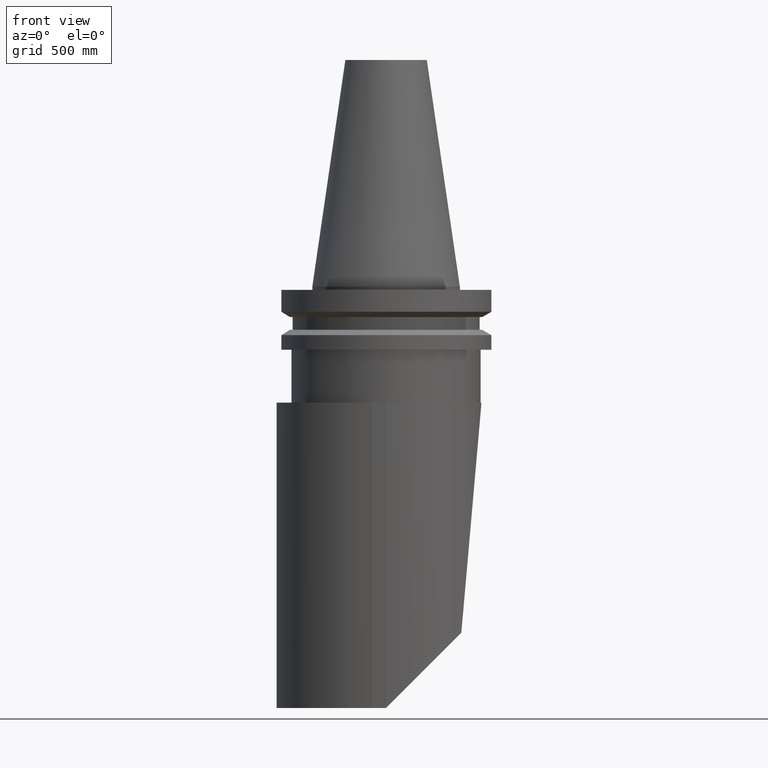
[diagram: clean part render]
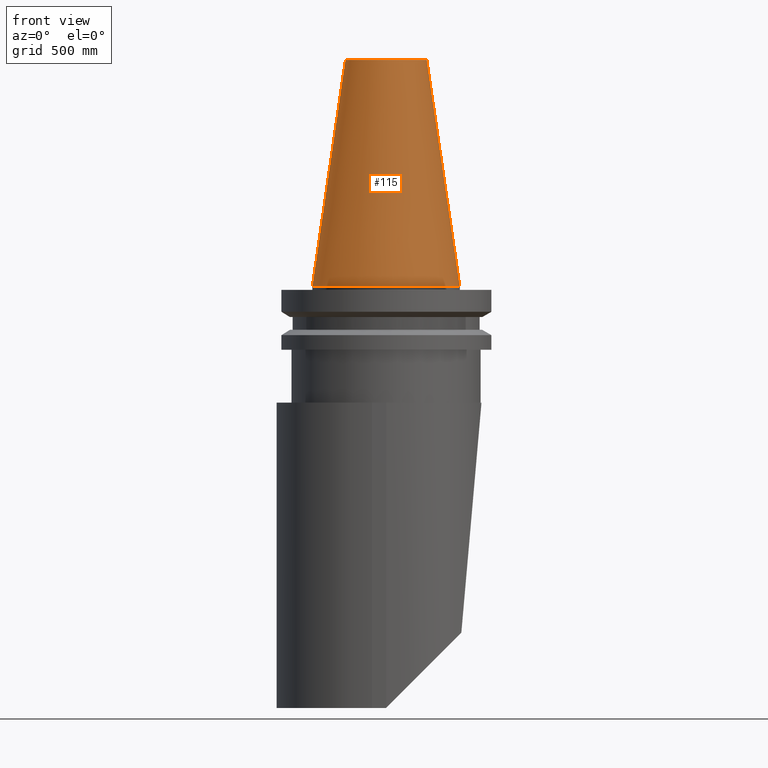
[diagram: same view with one face highlighted and labeled with its STEP entity id]
A machine part, front view. The second image highlights one B-rep face of the part: STEP entity #115.
In plain terms, the highlighted conical surface has half-angle 8.297 deg.
Its self-contained STEP definition (entity closure, byte-faithful):
#115=ADVANCED_FACE('Unnamed[1]',(#333,#334),#335,.T.);
#126=EDGE_CURVE('Unnamed[1]',#351,#351,#352,.T.);
#236=EDGE_CURVE('Unnamed[1]',#508,#508,#509,.T.);
#333=FACE_BOUND('',#640,.T.);
#334=FACE_BOUND('',#641,.T.);
#335=CONICAL_SURFACE('',#642,17.2484375007384,0.144812498217751);
#351=VERTEX_POINT('',#665);
#352=CIRCLE('',#666,12.2718750014769);
#508=VERTEX_POINT('',#897);
#509=CIRCLE('',#898,22.225);
#640=EDGE_LOOP('',(#1040));
#641=EDGE_LOOP('',(#1041));
#642=AXIS2_PLACEMENT_3D('',#1042,#1043,#1044);
#665=CARTESIAN_POINT('',(12.2718750014769,1.92480033607609E-015,68.25));
#666=AXIS2_PLACEMENT_3D('',#1058,#1059,#1060);
#897=CARTESIAN_POINT('',(22.225,-4.08266626665749E-015,2.72177751110499E-015));
#898=AXIS2_PLACEMENT_3D('',#1257,#1258,#1259);
#1040=ORIENTED_EDGE('',*,*,#236,.F.);
#1041=ORIENTED_EDGE('',*,*,#126,.T.);
#1042=CARTESIAN_POINT('',(-4.17910720209034E-015,2.08955360104517E-015,34.125));
#1043=DIRECTION('',(1.22464679914735E-016,-6.12323399573677E-017,-1.0));
#1044=DIRECTION('',(1.0,-1.83697019872103E-016,1.22464679914735E-016));
#1058=CARTESIAN_POINT('',(-8.35821440418068E-015,4.17910720209035E-015,68.25));
#1059=DIRECTION('',(1.22464679914735E-016,-6.12323399573677E-017,-1.0));
#1060=DIRECTION('',(1.0,-1.83697019872103E-016,1.22464679914735E-016));
#1257=CARTESIAN_POINT('',(0.0,0.0,0.0));
#1258=DIRECTION('',(1.22464679914735E-016,-6.12323399573677E-017,-1.0));
#1259=DIRECTION('',(1.0,-1.83697019872103E-016,1.22464679914735E-016));